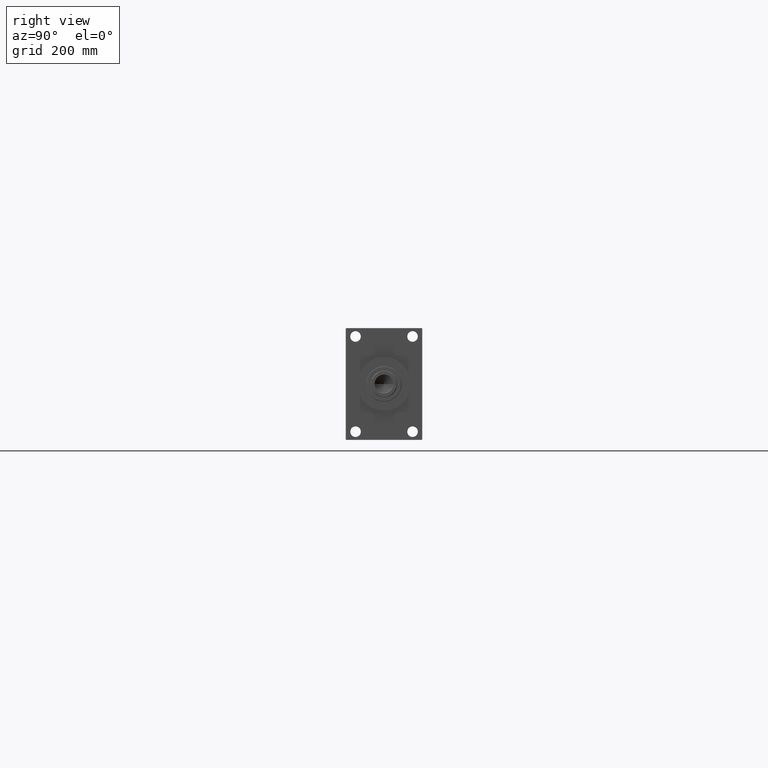
[diagram: clean part render]
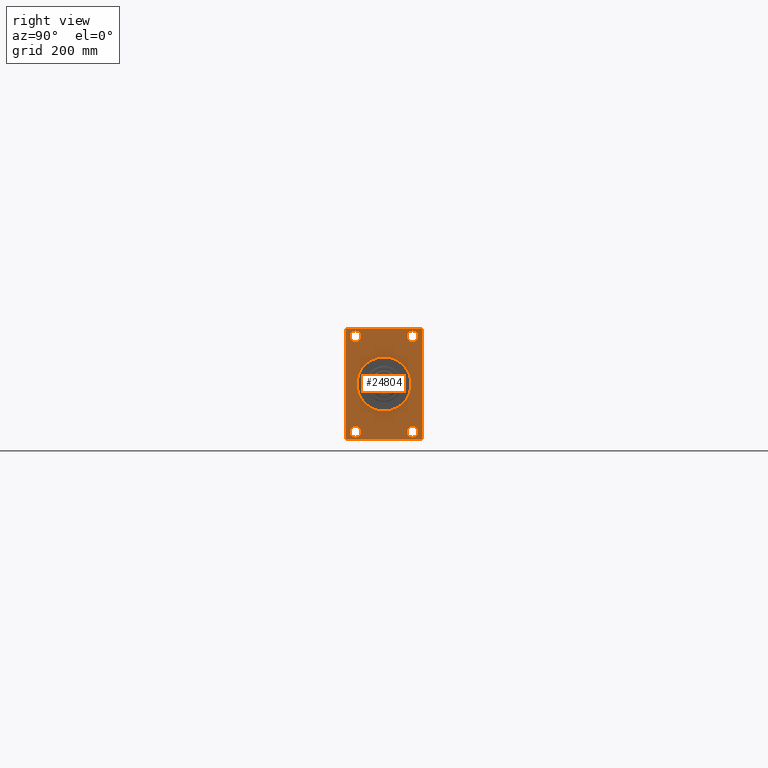
[diagram: same view with one face highlighted and labeled with its STEP entity id]
A machine part, right view. The second image highlights one B-rep face of the part: STEP entity #24804.
In plain terms, the highlighted planar face has unit normal (-1, 0, 0).
Its self-contained STEP definition (entity closure, byte-faithful):
#7 = FACE_OUTER_BOUND ( 'NONE', #6025, .T. ) ;
#53 = ORIENTED_EDGE ( 'NONE', *, *, #4093, .T. ) ;
#709 = VERTEX_POINT ( 'NONE', #39359 ) ;
#851 = CARTESIAN_POINT ( 'NONE',  ( 1146.000000000000000, 48.50000000000000711, -81.00000000000001421 ) ) ;
#855 = DIRECTION ( 'NONE',  ( -0.000000000000000000, -0.7071067811866162955, -0.7071067811864788499 ) ) ;
#1114 = DIRECTION ( 'NONE',  ( -1.000000000000000000, 0.000000000000000000, -0.000000000000000000 ) ) ;
#1254 = EDGE_LOOP ( 'NONE', ( #2288, #53 ) ) ;
#1375 = VECTOR ( 'NONE', #855, 1000.000000000000114 ) ;
#1700 = CARTESIAN_POINT ( 'NONE',  ( 1146.000000000000000, -65.00000000000001421, -94.50000000000008527 ) ) ;
#1802 = LINE ( 'NONE', #31231, #1375 ) ;
#1827 = CARTESIAN_POINT ( 'NONE',  ( 1146.000000000000000, -48.49999999999999289, -81.00000000000001421 ) ) ;
#2288 = ORIENTED_EDGE ( 'NONE', *, *, #21400, .T. ) ;
#3356 = DIRECTION ( 'NONE',  ( 0.000000000000000000, 0.000000000000000000, -1.000000000000000000 ) ) ;
#3447 = CARTESIAN_POINT ( 'NONE',  ( 1146.000000000000000, -48.50000000000000000, 90.50000000000007105 ) ) ;
#3659 = VERTEX_POINT ( 'NONE', #3447 ) ;
#3717 = VERTEX_POINT ( 'NONE', #29499 ) ;
#3858 = AXIS2_PLACEMENT_3D ( 'NONE', #4488, #1114, #19210 ) ;
#4093 = EDGE_CURVE ( 'NONE', #3659, #5832, #46623, .T. ) ;
#4282 = CARTESIAN_POINT ( 'NONE',  ( 1146.000000000000000, -64.50000000000018474, -95.00000000000002842 ) ) ;
#4488 = CARTESIAN_POINT ( 'NONE',  ( 1146.000000000000000, 48.50000000000000711, 81.00000000000000000 ) ) ;
#4703 = DIRECTION ( 'NONE',  ( 0.000000000000000000, 0.000000000000000000, 1.000000000000000000 ) ) ;
#4899 = LINE ( 'NONE', #19869, #33815 ) ;
#5295 = VECTOR ( 'NONE', #30787, 1000.000000000000227 ) ;
#5389 = DIRECTION ( 'NONE',  ( 0.000000000000000000, 7.304098846218135653E-17, -1.000000000000000000 ) ) ;
#5832 = VERTEX_POINT ( 'NONE', #8988 ) ;
#5991 = DIRECTION ( 'NONE',  ( -1.000000000000000000, 0.000000000000000000, -0.000000000000000000 ) ) ;
#6025 = EDGE_LOOP ( 'NONE', ( #39856, #18275, #13703, #26634, #32374, #42654, #16567, #39124 ) ) ;
#7231 = FACE_BOUND ( 'NONE', #18454, .T. ) ;
#7575 = ORIENTED_EDGE ( 'NONE', *, *, #15047, .F. ) ;
#7648 = CARTESIAN_POINT ( 'NONE',  ( 1146.000000000000000, 48.50000000000000711, -90.50000000000008527 ) ) ;
#7671 = LINE ( 'NONE', #4282, #29006 ) ;
#8030 = DIRECTION ( 'NONE',  ( 0.000000000000000000, 0.000000000000000000, -1.000000000000000000 ) ) ;
#8132 = DIRECTION ( 'NONE',  ( 0.000000000000000000, 0.7071067811864690800, -0.7071067811866260655 ) ) ;
#8988 = CARTESIAN_POINT ( 'NONE',  ( 1146.000000000000000, -48.50000000000000000, 71.49999999999994316 ) ) ;
#9601 = AXIS2_PLACEMENT_3D ( 'NONE', #31813, #28204, #42886 ) ;
#9657 = AXIS2_PLACEMENT_3D ( 'NONE', #46029, #5991, #42638 ) ;
#9690 = EDGE_CURVE ( 'NONE', #22245, #37117, #1802, .T. ) ;
#10200 = DIRECTION ( 'NONE',  ( 0.000000000000000000, -1.000000000000000000, -1.067522139062650425E-16 ) ) ;
#10749 = AXIS2_PLACEMENT_3D ( 'NONE', #1827, #39181, #30126 ) ;
#11422 = CIRCLE ( 'NONE', #12177, 46.00000000000000000 ) ;
#11473 = VECTOR ( 'NONE', #8030, 1000.000000000000000 ) ;
#11802 = DIRECTION ( 'NONE',  ( -1.000000000000000000, 0.000000000000000000, -0.000000000000000000 ) ) ;
#11862 = DIRECTION ( 'NONE',  ( 0.000000000000000000, 0.000000000000000000, -1.000000000000000000 ) ) ;
#12132 = LINE ( 'NONE', #36992, #11473 ) ;
#12177 = AXIS2_PLACEMENT_3D ( 'NONE', #16222, #12583, #11862 ) ;
#12583 = DIRECTION ( 'NONE',  ( 1.000000000000000000, 0.000000000000000000, 0.000000000000000000 ) ) ;
#12883 = ORIENTED_EDGE ( 'NONE', *, *, #29965, .T. ) ;
#12893 = CARTESIAN_POINT ( 'NONE',  ( 1146.000000000000000, 64.99999999999998579, -95.00000000000001421 ) ) ;
#13195 = EDGE_CURVE ( 'NONE', #14763, #44715, #38348, .T. ) ;
#13380 = VERTEX_POINT ( 'NONE', #18175 ) ;
#13703 = ORIENTED_EDGE ( 'NONE', *, *, #36985, .F. ) ;
#14232 = VERTEX_POINT ( 'NONE', #38700 ) ;
#14236 = EDGE_CURVE ( 'NONE', #44646, #17681, #11422, .T. ) ;
#14763 = VERTEX_POINT ( 'NONE', #16075 ) ;
#14820 = ORIENTED_EDGE ( 'NONE', *, *, #14236, .F. ) ;
#15047 = EDGE_CURVE ( 'NONE', #17681, #44646, #20689, .T. ) ;
#15482 = VERTEX_POINT ( 'NONE', #45946 ) ;
#15503 = EDGE_CURVE ( 'NONE', #13380, #14232, #27173, .T. ) ;
#15672 = FACE_BOUND ( 'NONE', #1254, .T. ) ;
#15834 = ORIENTED_EDGE ( 'NONE', *, *, #41050, .T. ) ;
#16075 = CARTESIAN_POINT ( 'NONE',  ( 1146.000000000000000, 48.50000000000000711, -71.49999999999995737 ) ) ;
#16222 = CARTESIAN_POINT ( 'NONE',  ( 1146.000000000000000, 0.000000000000000000, 0.000000000000000000 ) ) ;
#16567 = ORIENTED_EDGE ( 'NONE', *, *, #31009, .T. ) ;
#17577 = DIRECTION ( 'NONE',  ( 0.000000000000000000, 0.000000000000000000, 1.000000000000000000 ) ) ;
#17681 = VERTEX_POINT ( 'NONE', #19650 ) ;
#18053 = CIRCLE ( 'NONE', #9601, 9.500000000000063949 ) ;
#18175 = CARTESIAN_POINT ( 'NONE',  ( 1146.000000000000000, 64.49999999999992895, -95.00000000000001421 ) ) ;
#18275 = ORIENTED_EDGE ( 'NONE', *, *, #33343, .T. ) ;
#18433 = CIRCLE ( 'NONE', #29214, 9.500000000000063949 ) ;
#18454 = EDGE_LOOP ( 'NONE', ( #14820, #7575 ) ) ;
#19210 = DIRECTION ( 'NONE',  ( 0.000000000000000000, 0.000000000000000000, 1.000000000000000000 ) ) ;
#19650 = CARTESIAN_POINT ( 'NONE',  ( 1146.000000000000000, 5.633375276077824704E-15, -46.00000000000000000 ) ) ;
#19844 = CARTESIAN_POINT ( 'NONE',  ( 1146.000000000000000, -65.00000000000001421, 94.50000000000002842 ) ) ;
#19869 = CARTESIAN_POINT ( 'NONE',  ( 1146.000000000000000, 64.99999999999997158, 94.99999999999997158 ) ) ;
#20086 = VERTEX_POINT ( 'NONE', #35768 ) ;
#20685 = CARTESIAN_POINT ( 'NONE',  ( 1146.000000000000000, 64.99999999999997158, 94.99999999999997158 ) ) ;
#20689 = CIRCLE ( 'NONE', #23793, 46.00000000000000000 ) ;
#21400 = EDGE_CURVE ( 'NONE', #5832, #3659, #34000, .T. ) ;
#21712 = CARTESIAN_POINT ( 'NONE',  ( 1146.000000000000000, 0.000000000000000000, 0.000000000000000000 ) ) ;
#21967 = DIRECTION ( 'NONE',  ( -0.000000000000000000, 0.000000000000000000, 1.000000000000000000 ) ) ;
#22245 = VERTEX_POINT ( 'NONE', #44623 ) ;
#22876 = EDGE_LOOP ( 'NONE', ( #23156, #34582 ) ) ;
#23156 = ORIENTED_EDGE ( 'NONE', *, *, #23338, .T. ) ;
#23338 = EDGE_CURVE ( 'NONE', #44715, #14763, #37973, .T. ) ;
#23754 = CARTESIAN_POINT ( 'NONE',  ( 1146.000000000000000, 48.50000000000000711, 81.00000000000000000 ) ) ;
#23793 = AXIS2_PLACEMENT_3D ( 'NONE', #21712, #36412, #3356 ) ;
#24039 = VERTEX_POINT ( 'NONE', #42156 ) ;
#24581 = CARTESIAN_POINT ( 'NONE',  ( 1146.000000000000000, -48.50000000000000000, 81.00000000000000000 ) ) ;
#24777 = LINE ( 'NONE', #20685, #38130 ) ;
#24804 = ADVANCED_FACE ( 'NONE', ( #15672, #25593, #26298, #33047, #7231, #7 ), #36911, .F. ) ;
#25258 = VECTOR ( 'NONE', #10200, 1000.000000000000000 ) ;
#25462 = CARTESIAN_POINT ( 'NONE',  ( 1146.000000000000000, 48.50000000000000711, -81.00000000000001421 ) ) ;
#25593 = FACE_BOUND ( 'NONE', #40420, .T. ) ;
#26148 = CARTESIAN_POINT ( 'NONE',  ( 1146.000000000000000, 64.50000000000002842, 94.99999999999997158 ) ) ;
#26298 = FACE_BOUND ( 'NONE', #22876, .T. ) ;
#26301 = AXIS2_PLACEMENT_3D ( 'NONE', #24581, #46031, #17577 ) ;
#26634 = ORIENTED_EDGE ( 'NONE', *, *, #15503, .T. ) ;
#27024 = CARTESIAN_POINT ( 'NONE',  ( 1146.000000000000000, 48.50000000000000711, 71.49999999999994316 ) ) ;
#27173 = LINE ( 'NONE', #46184, #5295 ) ;
#28204 = DIRECTION ( 'NONE',  ( -1.000000000000000000, 0.000000000000000000, -0.000000000000000000 ) ) ;
#28929 = EDGE_CURVE ( 'NONE', #15482, #36770, #32937, .T. ) ;
#29006 = VECTOR ( 'NONE', #8132, 1000.000000000000114 ) ;
#29214 = AXIS2_PLACEMENT_3D ( 'NONE', #23754, #30994, #4703 ) ;
#29499 = CARTESIAN_POINT ( 'NONE',  ( 1146.000000000000000, -64.50000000000018474, -95.00000000000002842 ) ) ;
#29842 = AXIS2_PLACEMENT_3D ( 'NONE', #851, #37992, #30518 ) ;
#29965 = EDGE_CURVE ( 'NONE', #24039, #709, #18053, .T. ) ;
#30126 = DIRECTION ( 'NONE',  ( 0.000000000000000000, 0.000000000000000000, 1.000000000000000000 ) ) ;
#30380 = CARTESIAN_POINT ( 'NONE',  ( 1146.000000000000000, 0.000000000000000000, 0.000000000000000000 ) ) ;
#30518 = DIRECTION ( 'NONE',  ( 0.000000000000000000, 0.000000000000000000, 1.000000000000000000 ) ) ;
#30787 = DIRECTION ( 'NONE',  ( -0.000000000000000000, 0.7071067811866358355, 0.7071067811864591990 ) ) ;
#30994 = DIRECTION ( 'NONE',  ( -1.000000000000000000, 0.000000000000000000, -0.000000000000000000 ) ) ;
#31009 = EDGE_CURVE ( 'NONE', #36770, #22245, #24777, .T. ) ;
#31231 = CARTESIAN_POINT ( 'NONE',  ( 1146.000000000000000, -65.00000000000001421, 94.50000000000002842 ) ) ;
#31813 = CARTESIAN_POINT ( 'NONE',  ( 1146.000000000000000, -48.49999999999999289, -81.00000000000001421 ) ) ;
#32206 = DIRECTION ( 'NONE',  ( 0.000000000000000000, 0.000000000000000000, 1.000000000000000000 ) ) ;
#32374 = ORIENTED_EDGE ( 'NONE', *, *, #39951, .F. ) ;
#32937 = LINE ( 'NONE', #36559, #35742 ) ;
#33047 = FACE_BOUND ( 'NONE', #36830, .T. ) ;
#33343 = EDGE_CURVE ( 'NONE', #42680, #3717, #7671, .T. ) ;
#33815 = VECTOR ( 'NONE', #5389, 1000.000000000000000 ) ;
#34000 = CIRCLE ( 'NONE', #26301, 9.500000000000063949 ) ;
#34582 = ORIENTED_EDGE ( 'NONE', *, *, #13195, .T. ) ;
#34953 = AXIS2_PLACEMENT_3D ( 'NONE', #30380, #11802, #21967 ) ;
#35742 = VECTOR ( 'NONE', #47155, 1000.000000000000114 ) ;
#35768 = CARTESIAN_POINT ( 'NONE',  ( 1146.000000000000000, 48.50000000000000711, 90.50000000000007105 ) ) ;
#36228 = CIRCLE ( 'NONE', #3858, 9.500000000000063949 ) ;
#36412 = DIRECTION ( 'NONE',  ( 1.000000000000000000, 0.000000000000000000, 0.000000000000000000 ) ) ;
#36559 = CARTESIAN_POINT ( 'NONE',  ( 1146.000000000000000, 64.50000000000002842, 94.99999999999997158 ) ) ;
#36770 = VERTEX_POINT ( 'NONE', #26148 ) ;
#36830 = EDGE_LOOP ( 'NONE', ( #43662, #44290 ) ) ;
#36911 = PLANE ( 'NONE',  #34953 ) ;
#36957 = CIRCLE ( 'NONE', #10749, 9.500000000000063949 ) ;
#36985 = EDGE_CURVE ( 'NONE', #13380, #3717, #45915, .T. ) ;
#36992 = CARTESIAN_POINT ( 'NONE',  ( 1146.000000000000000, -65.00000000000001421, 94.99999999999997158 ) ) ;
#37117 = VERTEX_POINT ( 'NONE', #19844 ) ;
#37398 = VERTEX_POINT ( 'NONE', #27024 ) ;
#37973 = CIRCLE ( 'NONE', #42583, 9.500000000000063949 ) ;
#37992 = DIRECTION ( 'NONE',  ( -1.000000000000000000, 0.000000000000000000, -0.000000000000000000 ) ) ;
#38130 = VECTOR ( 'NONE', #42599, 1000.000000000000000 ) ;
#38348 = CIRCLE ( 'NONE', #29842, 9.500000000000063949 ) ;
#38700 = CARTESIAN_POINT ( 'NONE',  ( 1146.000000000000000, 64.99999999999998579, -94.50000000000008527 ) ) ;
#39124 = ORIENTED_EDGE ( 'NONE', *, *, #9690, .T. ) ;
#39181 = DIRECTION ( 'NONE',  ( -1.000000000000000000, 0.000000000000000000, -0.000000000000000000 ) ) ;
#39359 = CARTESIAN_POINT ( 'NONE',  ( 1146.000000000000000, -48.49999999999999289, -90.50000000000008527 ) ) ;
#39462 = EDGE_CURVE ( 'NONE', #37117, #42680, #12132, .T. ) ;
#39856 = ORIENTED_EDGE ( 'NONE', *, *, #39462, .T. ) ;
#39869 = EDGE_CURVE ( 'NONE', #37398, #20086, #18433, .T. ) ;
#39951 = EDGE_CURVE ( 'NONE', #15482, #14232, #4899, .T. ) ;
#40153 = DIRECTION ( 'NONE',  ( -1.000000000000000000, 0.000000000000000000, -0.000000000000000000 ) ) ;
#40420 = EDGE_LOOP ( 'NONE', ( #15834, #12883 ) ) ;
#41050 = EDGE_CURVE ( 'NONE', #709, #24039, #36957, .T. ) ;
#42156 = CARTESIAN_POINT ( 'NONE',  ( 1146.000000000000000, -48.49999999999999289, -71.49999999999995737 ) ) ;
#42583 = AXIS2_PLACEMENT_3D ( 'NONE', #25462, #40153, #32206 ) ;
#42599 = DIRECTION ( 'NONE',  ( 0.000000000000000000, -1.000000000000000000, 0.000000000000000000 ) ) ;
#42638 = DIRECTION ( 'NONE',  ( 0.000000000000000000, 0.000000000000000000, 1.000000000000000000 ) ) ;
#42654 = ORIENTED_EDGE ( 'NONE', *, *, #28929, .T. ) ;
#42680 = VERTEX_POINT ( 'NONE', #1700 ) ;
#42886 = DIRECTION ( 'NONE',  ( 0.000000000000000000, 0.000000000000000000, 1.000000000000000000 ) ) ;
#43662 = ORIENTED_EDGE ( 'NONE', *, *, #39869, .T. ) ;
#44290 = ORIENTED_EDGE ( 'NONE', *, *, #46588, .T. ) ;
#44623 = CARTESIAN_POINT ( 'NONE',  ( 1146.000000000000000, -64.49999999999997158, 94.99999999999997158 ) ) ;
#44646 = VERTEX_POINT ( 'NONE', #46008 ) ;
#44715 = VERTEX_POINT ( 'NONE', #7648 ) ;
#45915 = LINE ( 'NONE', #12893, #25258 ) ;
#45946 = CARTESIAN_POINT ( 'NONE',  ( 1146.000000000000000, 64.99999999999997158, 94.49999999999991473 ) ) ;
#46008 = CARTESIAN_POINT ( 'NONE',  ( 1146.000000000000000, 0.000000000000000000, 46.00000000000000000 ) ) ;
#46029 = CARTESIAN_POINT ( 'NONE',  ( 1146.000000000000000, -48.50000000000000000, 81.00000000000000000 ) ) ;
#46031 = DIRECTION ( 'NONE',  ( -1.000000000000000000, 0.000000000000000000, -0.000000000000000000 ) ) ;
#46184 = CARTESIAN_POINT ( 'NONE',  ( 1146.000000000000000, 64.99999999999998579, -94.50000000000008527 ) ) ;
#46588 = EDGE_CURVE ( 'NONE', #20086, #37398, #36228, .T. ) ;
#46623 = CIRCLE ( 'NONE', #9657, 9.500000000000063949 ) ;
#47155 = DIRECTION ( 'NONE',  ( 0.000000000000000000, -0.7071067811864690800, 0.7071067811866260655 ) ) ;